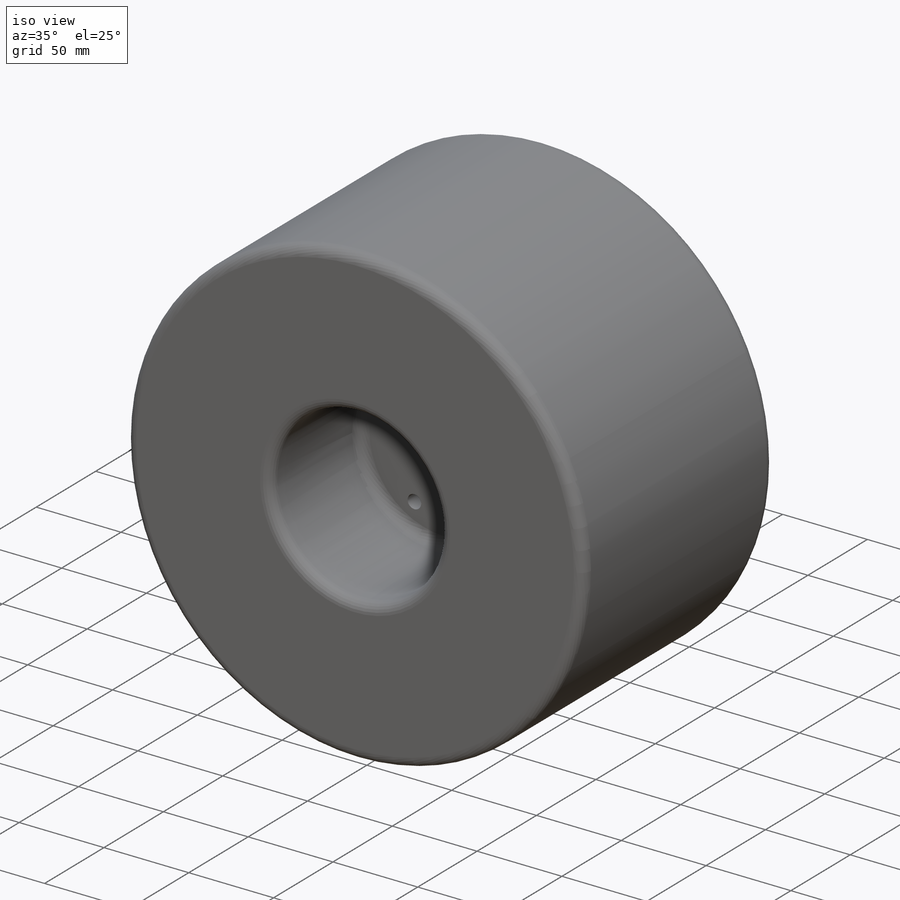
[diagram: iso view]
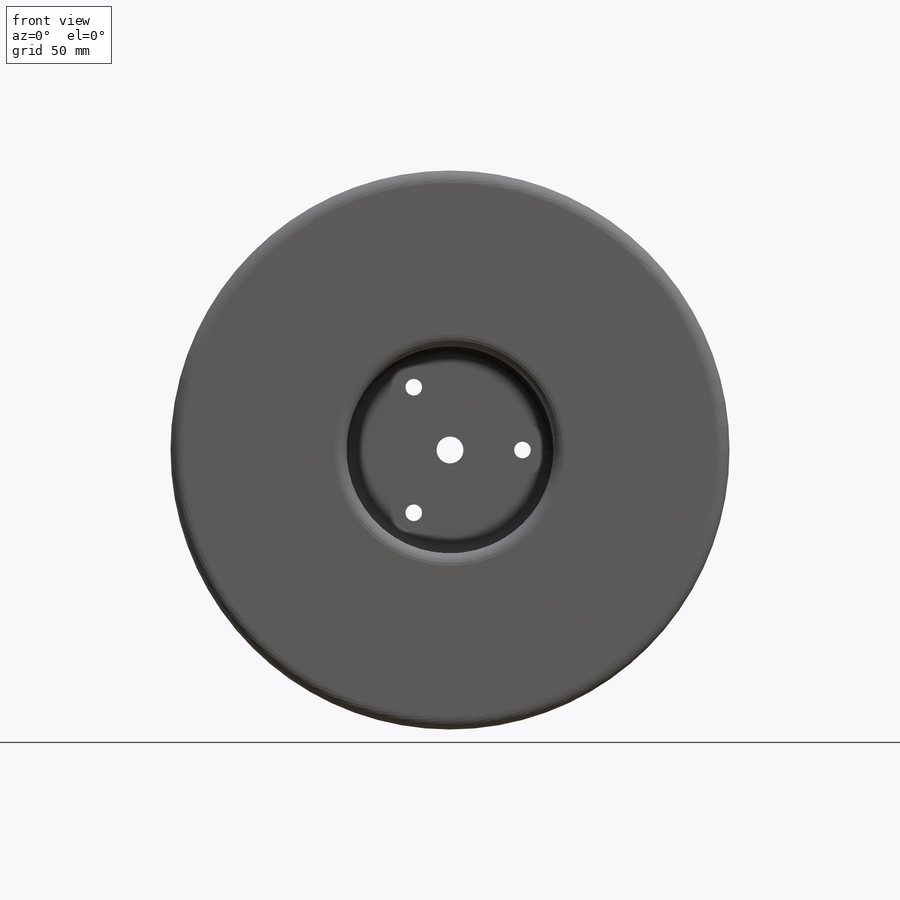
[diagram: front view]
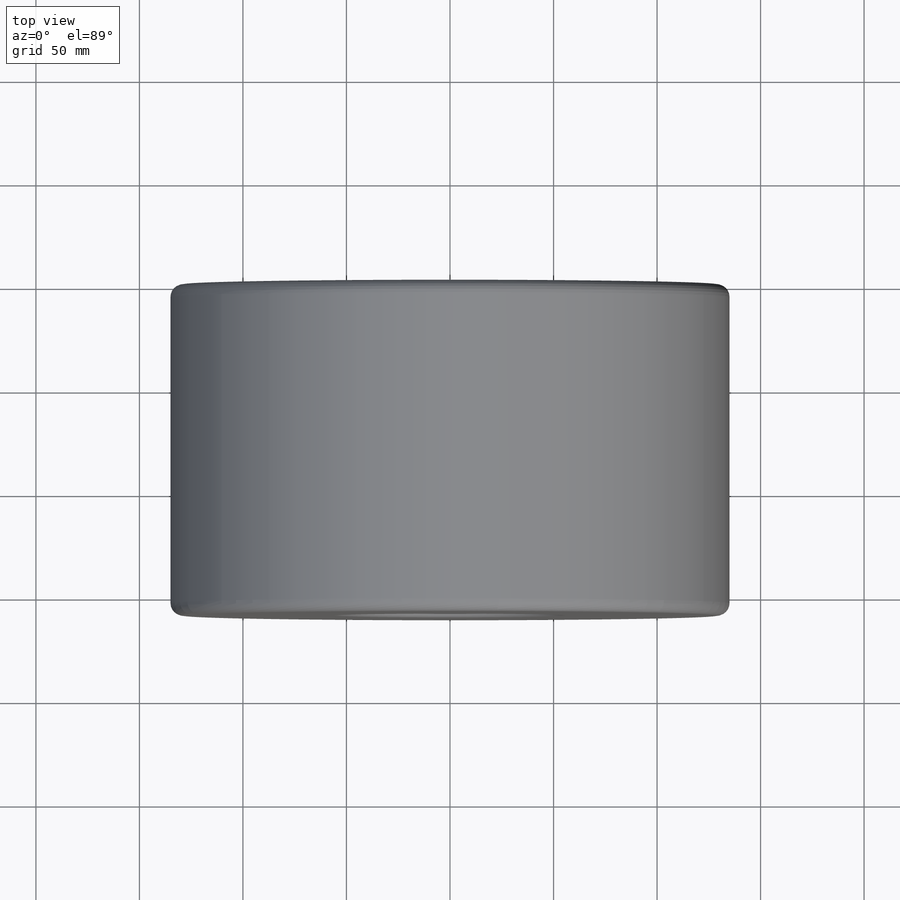
[diagram: top view]
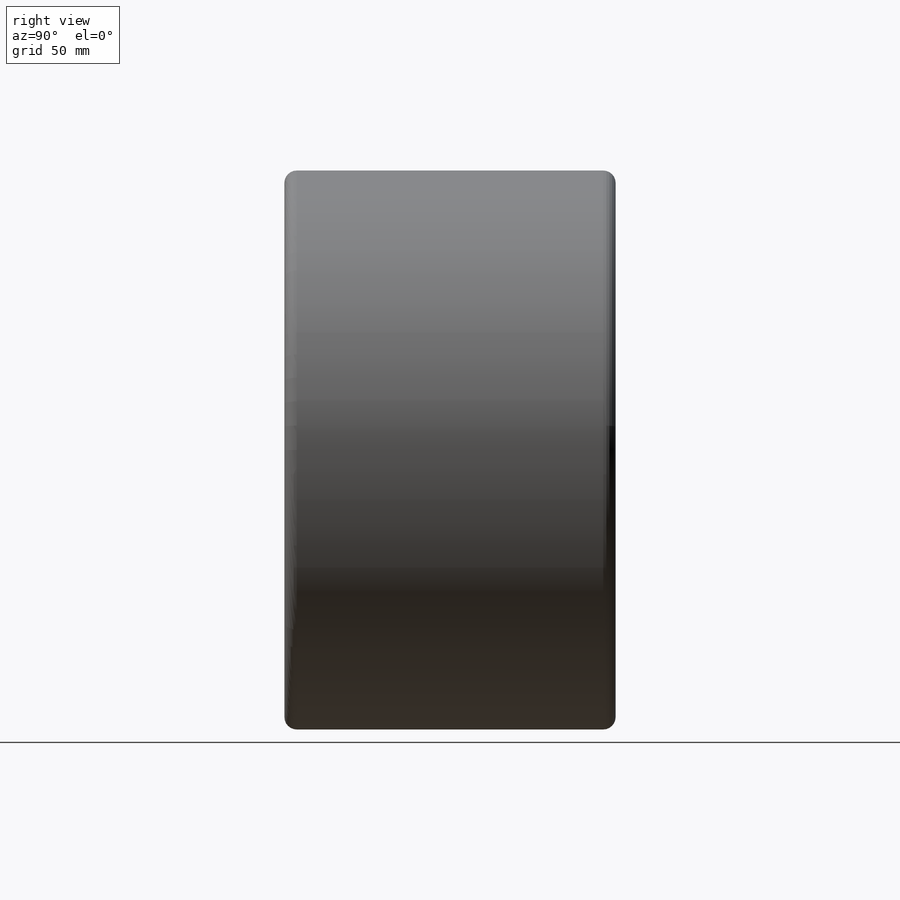
[diagram: right view]
SOLIDWORKS PART (.sldprt)
format: sldprt  version: not decoded by parser v0  size: 245,248 bytes
history: native  units: mm
features: sketch x5, cut_extrude x4, material x1, extrude x1, fillet x1 (+13 scaffold rows collapsed)
feature tree (25):
  scaffold x13  (default folders/planes/origin — collapsed)
  material  "Material <not specified>"
  sketch  "Sketch1"  dims[c1.D1=100.0mm c1.D2=240.0mm c2.D1=270.0mm c2.D2=~55.269566mm]
  extrude  "Boss-Extrude2"  Depth=160mm
  sketch  "Sketch3"  dims[D1=100.0mm]
  cut_extrude  "Cut-Extrude1"  Depth=75mm
  sketch  "Sketch4"  dims[D1=100.0mm]
  cut_extrude  "Cut-Extrude2"  Depth=75mm
  fillet  "Fillet1"  Radius=6mm
  sketch  "Sketch5"  dims[c1.D1=8.0mm c1.D2=8.0mm c1.D3=8.0mm c2.D1=~1.817214mm c2.D2=22.0mm c3.D1=35.0mm c3.D3=3.0]
  cut_extrude  "Cut-Extrude3"  Depth=45mm
  sketch  "Sketch6"  dims[D1=13.0mm]
  cut_extrude  "Cut-Extrude4"  [1 undecoded]
decode coverage: 10 of 11 modeling features carry decoded parameters
note: ~ marks probable driven/reference dimensions
note: 1 parameter value undecoded
note: suppression state not decoded; provenance and decode notes live in map.json
